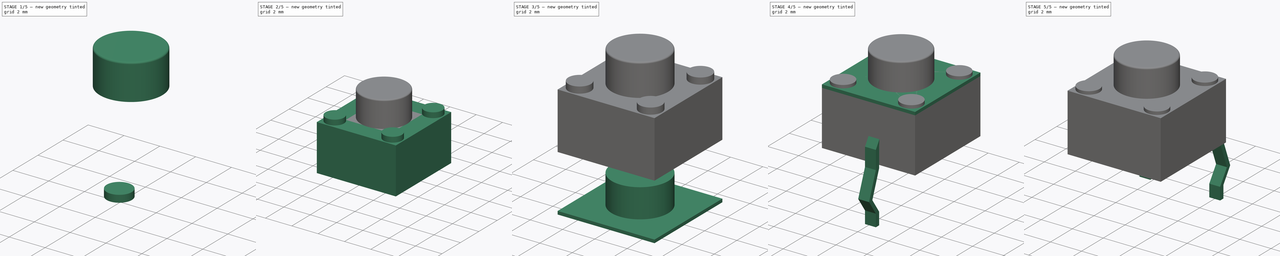
[diagram: build sequence overview — one tinted view per stage of 5, left to right]
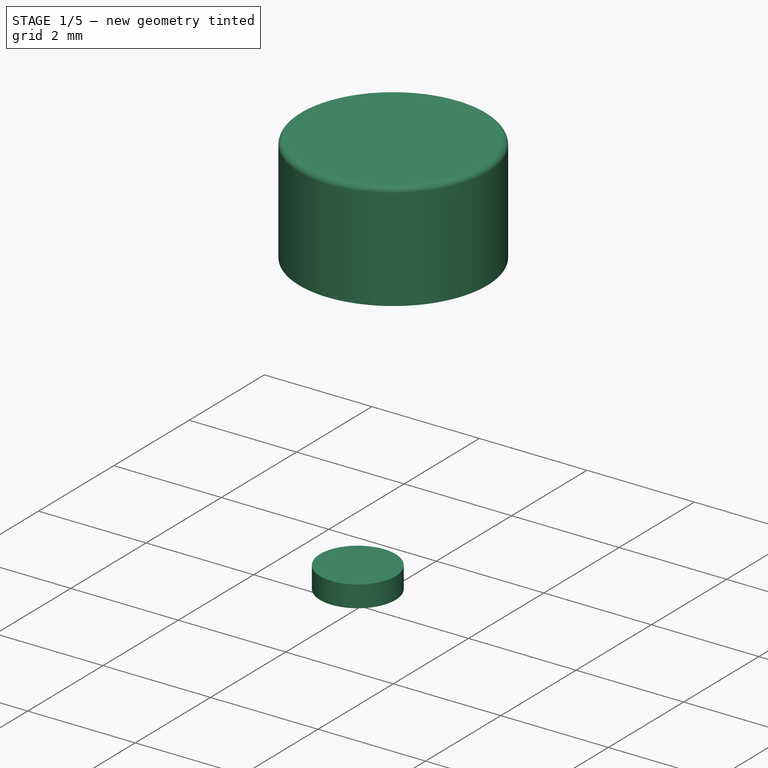
[diagram: stage 1 of 5 — iso view after this stage's code; geometry added in this stage tinted green]
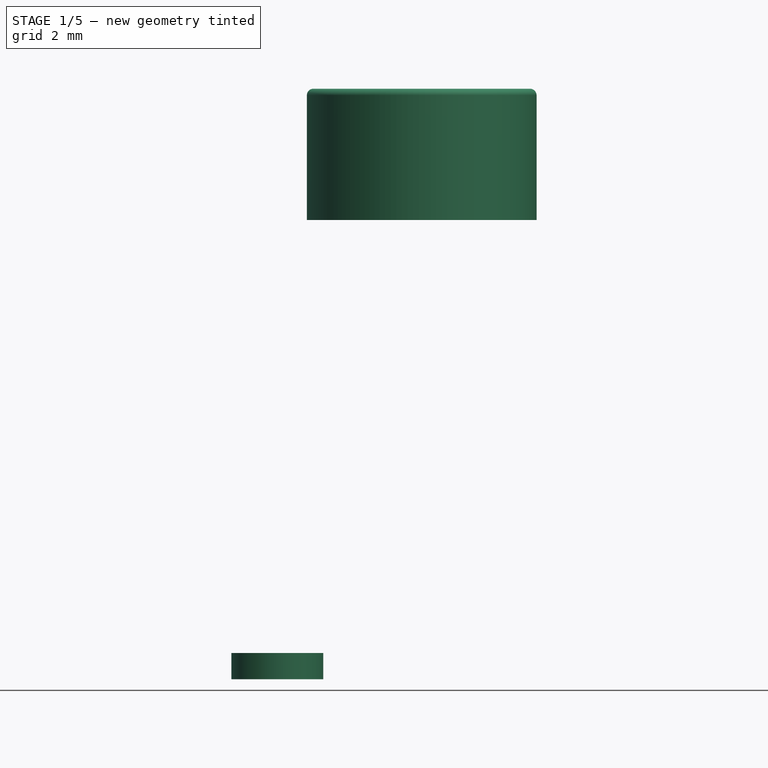
[diagram: stage 1 of 5 — front view after this stage's code; geometry added in this stage tinted green]
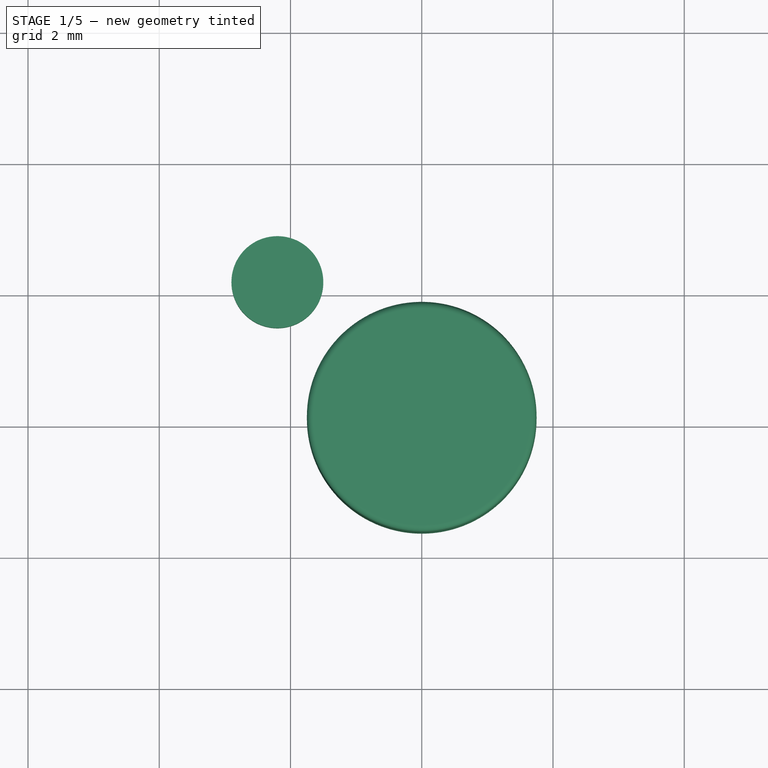
[diagram: stage 1 of 5 — top view after this stage's code; geometry added in this stage tinted green]
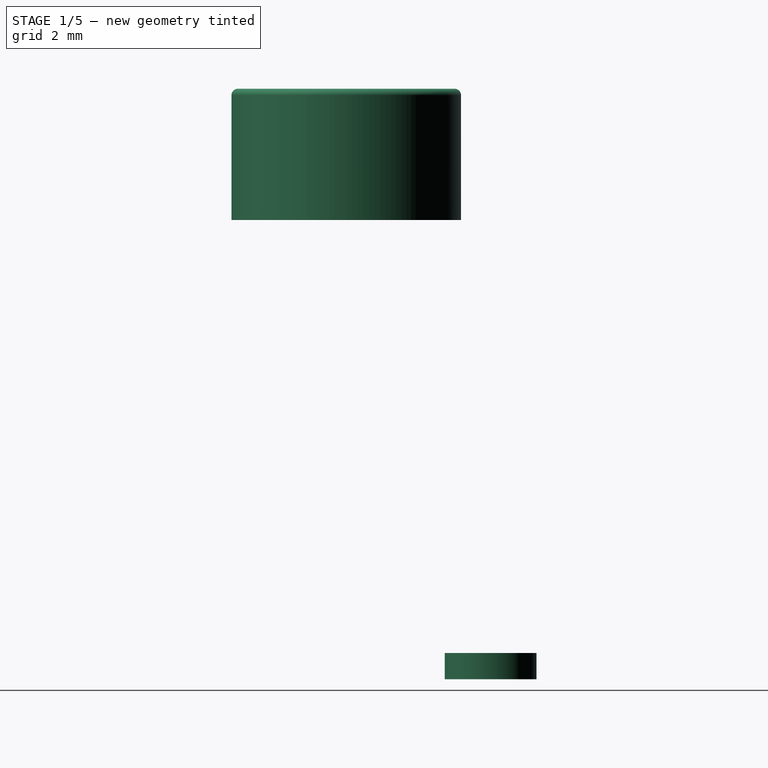
[diagram: stage 1 of 5 — right view after this stage's code; geometry added in this stage tinted green]
FCSTD DOCUMENT  (FreeCAD 0.17R13541 (Git))
Label: Top Push
License: All rights reserved
LicenseURL: http://en.wikipedia.org/wiki/All_rights_reserved
objects: PartDesign::Pad×7, Sketcher::SketchObject×6, PartDesign::Body×6, Part::FeaturePython×2, Part::Fillet×2, Part::MultiFuse×2, Part::Mirroring×1, Part::Cut×1
note: 34 computed .brp shape members not serialized (recipe doc carries the construction recipe); baked Part::Feature solids carry a one-line shape summary decoded from their .brp

FEATURE [Sketcher::SketchObject] Sketch003
  MapMode = 5
  Support = -> [XY_Plane003]
  sketch-geometry (1):
    g0: Circle CenterX=-2.2 CenterY=2.2 CenterZ=0 NormalX=0 NormalY=0 NormalZ=1 AngleXU=0 Radius=0.7
  constraints (3):
    c: Radius(g0) = 0.7
    c: DistanceX(g0,g-1) = 2.2
    c: DistanceY(g-1,g0) = 2.2
FEATURE [PartDesign::Pad] Pad004
  Length = 0.4
  Length2 = 0
  Profile = -> Sketch003
  Type = 4
FEATURE [Sketcher::SketchObject] Sketch005
  MapMode = 5
  Support = -> [XY_Plane005]
  sketch-geometry (1):
    g0: Circle CenterX=0 CenterY=0 CenterZ=0 NormalX=0 NormalY=0 NormalZ=1 AngleXU=0 Radius=1.75
  constraints (2):
    c: Coincident(g0,g-1)
    c: Radius(g0) = 1.75
FEATURE [PartDesign::Pad] Pad006
  Length = 2
  Length2 = 100
  Profile = -> Sketch005
  Type = 0
FEATURE [PartDesign::Body] Body005
  Group = -> [Sketch005,Pad006]
  Origin = -> Origin005
  Placement = pos=(0,0,7) rot=(0,0,1;0rad)
  Tip = -> Pad006
FEATURE [Part::Fillet] Fillet001
  Base = -> Pad006
  Edges = 1 edges r=0.1: [Edge3]
  Placement = pos=(0,0,7) rot=(0,0,1;0rad)
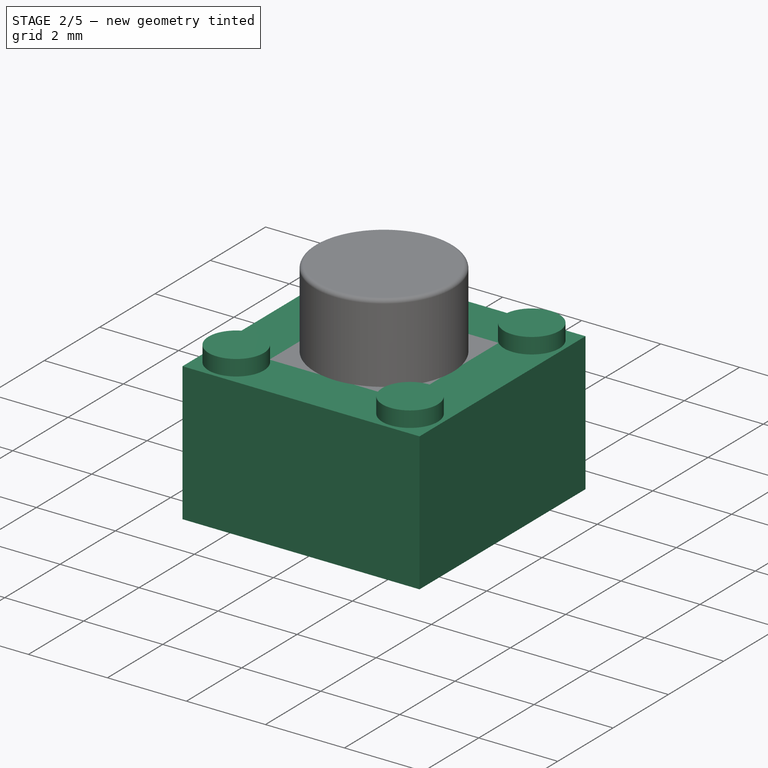
[diagram: stage 2 of 5 — iso view after this stage's code; geometry added in this stage tinted green]
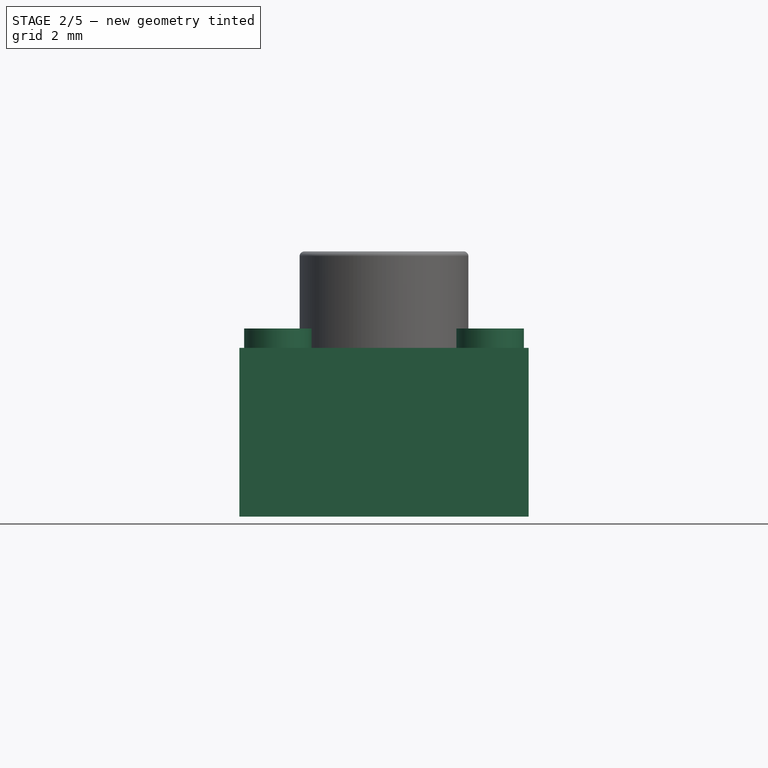
[diagram: stage 2 of 5 — front view after this stage's code; geometry added in this stage tinted green]
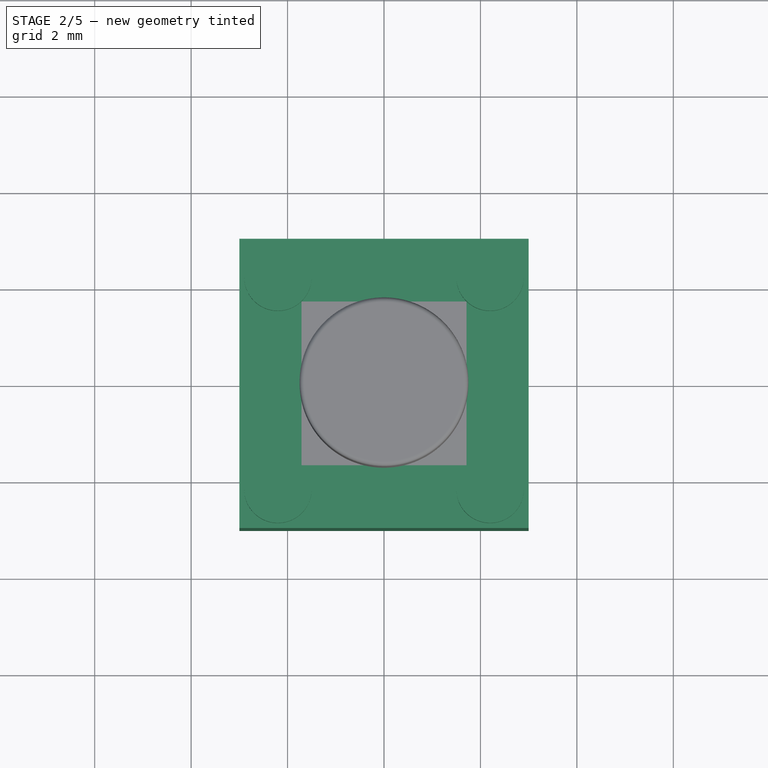
[diagram: stage 2 of 5 — top view after this stage's code; geometry added in this stage tinted green]
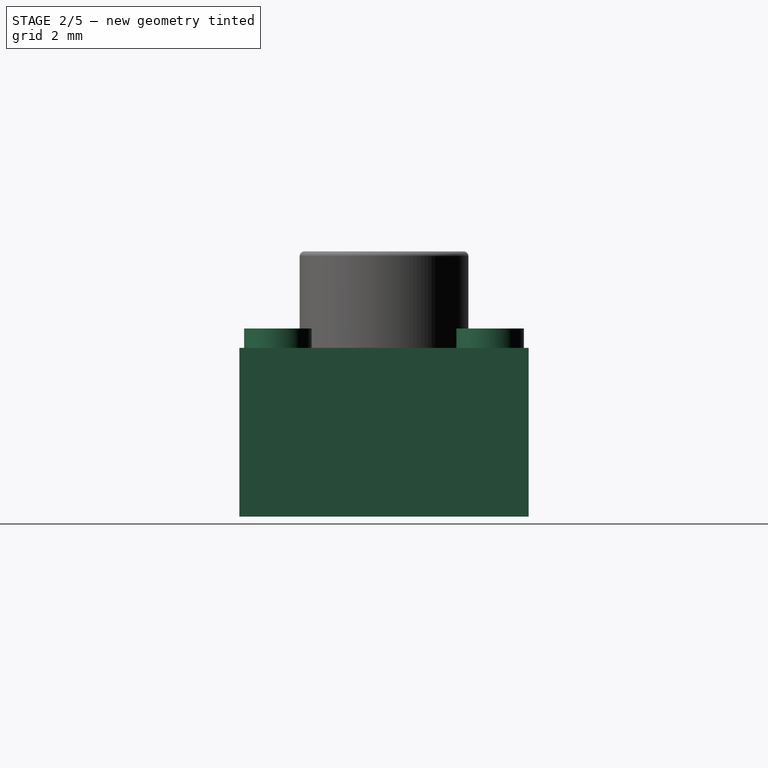
[diagram: stage 2 of 5 — right view after this stage's code; geometry added in this stage tinted green]
FEATURE [Sketcher::SketchObject] Sketch001
  MapMode = 5
  Placement = pos=(0,0,0) rot=(0.57735,0.57735,0.57735;2.0944rad)
  Support = -> [YZ_Plane001]
  sketch-geometry (4):
    g0: LineSegment StartX=-3 StartY=7 StartZ=0 EndX=3 EndY=7 EndZ=0
    g1: LineSegment StartX=3 StartY=7 StartZ=0 EndX=3 EndY=3.5 EndZ=0
    g2: LineSegment StartX=3 StartY=3.5 StartZ=0 EndX=-3 EndY=3.5 EndZ=0
    g3: LineSegment StartX=-3 StartY=3.5 StartZ=0 EndX=-3 EndY=7 EndZ=0
  constraints (12):
    c: Coincident(g0,g1)
    c: Coincident(g1,g2)
    c: Coincident(g2,g3)
    c: Coincident(g3,g0)
    c: Horizontal(g0)
    c: Horizontal(g2)
    c: Vertical(g1)
    c: Vertical(g3)
    c: DistanceY(g-1,g0) = 7
    c: DistanceY(g1,g0) = 3.5
    c: DistanceX(g-1,g1) = 3
    c: DistanceX(g2,g-1) = 3
FEATURE [PartDesign::Pad] Pad002
  Length = 3
  Length2 = 3
  Placement = pos=(0,0,0) rot=(0.57735,0.57735,0.57735;2.0944rad)
  Profile = -> Sketch001
  Type = 4
FEATURE [PartDesign::Body] Body003
  Group = -> [Sketch003,Pad004]
  Origin = -> Origin003
  Placement = pos=(0,0,7) rot=(0,0,1;0rad)
  Tip = -> Pad004
FEATURE [Part::FeaturePython] Array001  # Draft array (typed FeaturePython)
  Angle = 360
  ArrayType = 0
  Axis = (0,0,1)
  Base = -> Body003
  Center = (0,0,0)
  Fuse = false
  IntervalAxis = (0,0,0)
  IntervalX = (4.4,0,0)
  IntervalY = (0,-4.4,0)
  IntervalZ = (0,0,0)
  NumberPolar = 1
  NumberX = 2
  NumberY = 2
  NumberZ = 1
FEATURE [Part::MultiFuse] Fusion
  Shapes = -> [Body001,Array001]
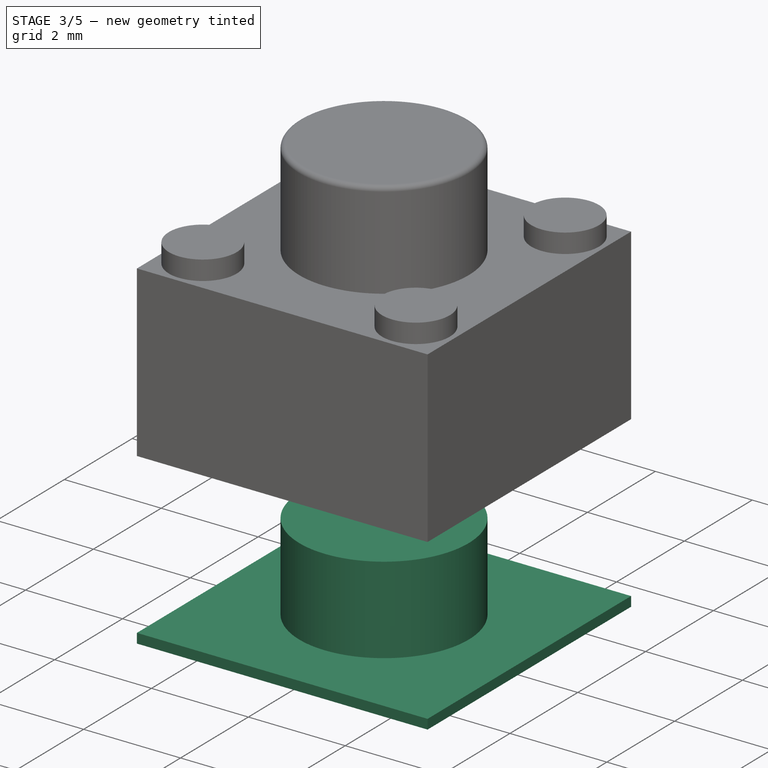
[diagram: stage 3 of 5 — iso view after this stage's code; geometry added in this stage tinted green]
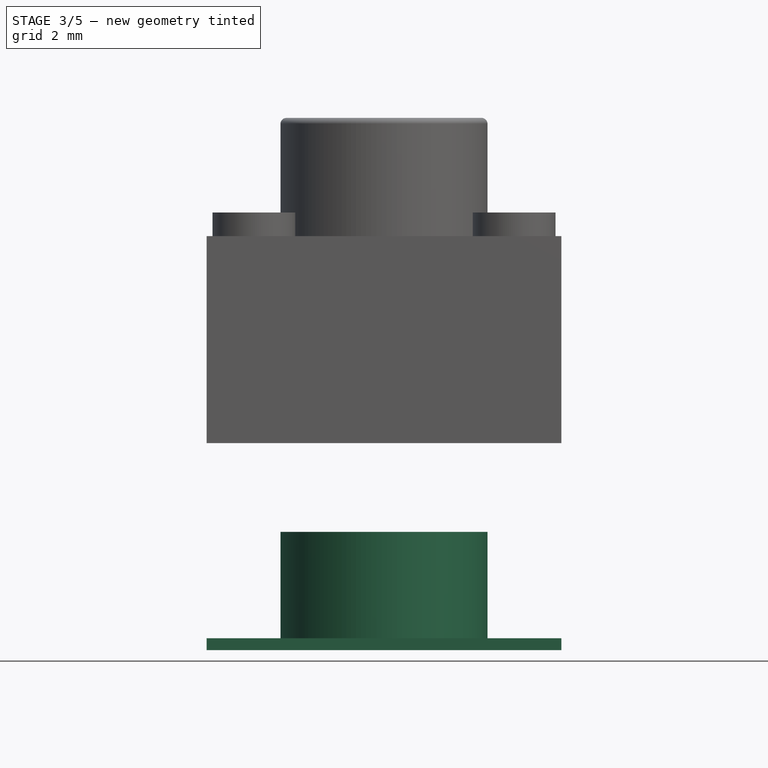
[diagram: stage 3 of 5 — front view after this stage's code; geometry added in this stage tinted green]
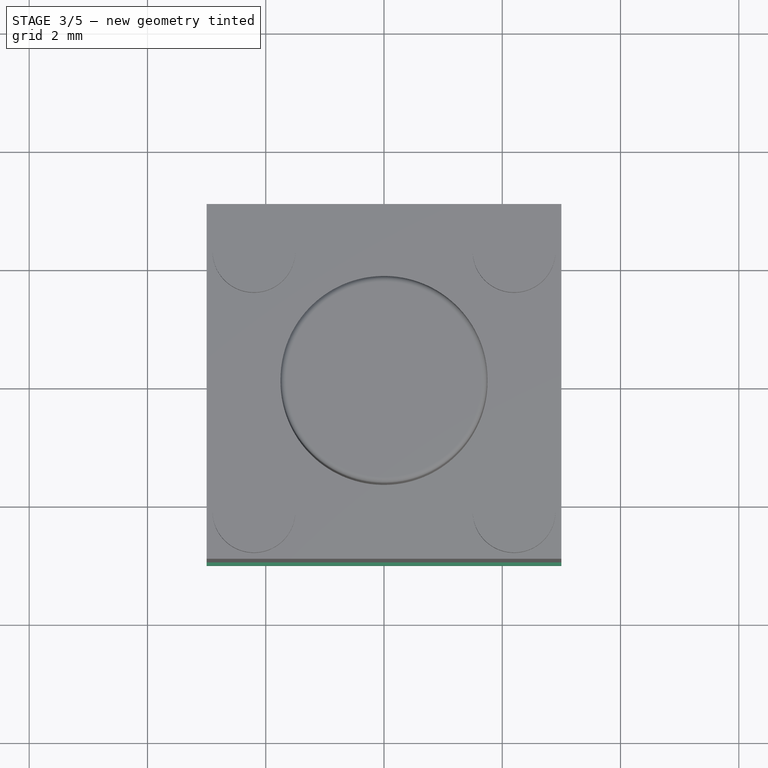
[diagram: stage 3 of 5 — top view after this stage's code; geometry added in this stage tinted green]
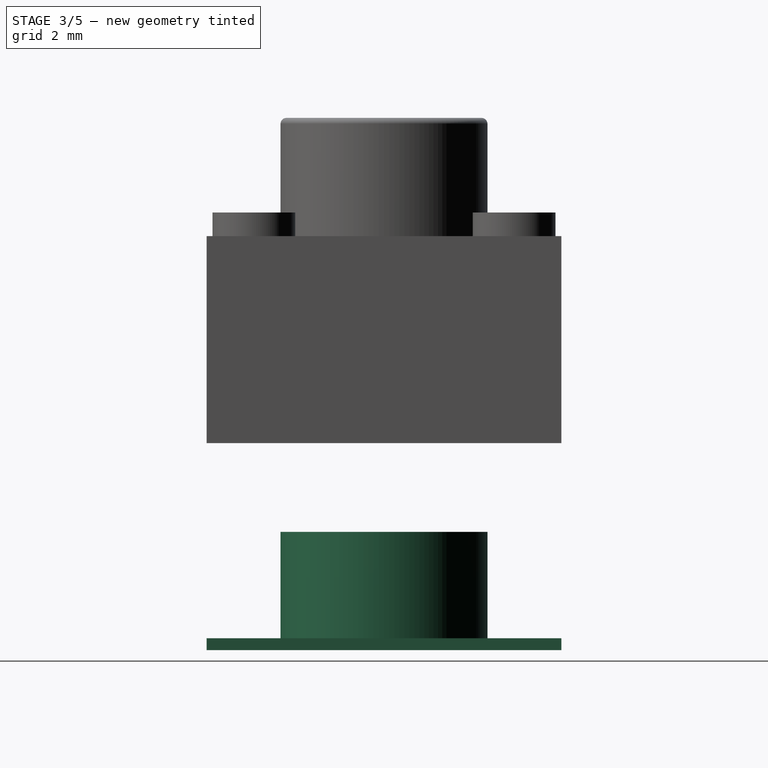
[diagram: stage 3 of 5 — right view after this stage's code; geometry added in this stage tinted green]
FEATURE [PartDesign::Body] Body001
  Group = -> [Sketch001,Pad002]
  Origin = -> Origin001
  Tip = -> Pad002
FEATURE [Sketcher::SketchObject] Sketch002
  MapMode = 5
  Support = -> [XY_Plane002]
  sketch-geometry (4):
    g0: LineSegment StartX=-3 StartY=3 StartZ=0 EndX=3 EndY=3 EndZ=0
    g1: LineSegment StartX=3 StartY=3 StartZ=0 EndX=3 EndY=-3 EndZ=0
    g2: LineSegment StartX=3 StartY=-3 StartZ=0 EndX=-3 EndY=-3 EndZ=0
    g3: LineSegment StartX=-3 StartY=-3 StartZ=0 EndX=-3 EndY=3 EndZ=0
  constraints (12):
    c: Coincident(g0,g1)
    c: Coincident(g1,g2)
    c: Coincident(g2,g3)
    c: Coincident(g3,g0)
    c: Horizontal(g0)
    c: Horizontal(g2)
    c: Vertical(g1)
    c: Vertical(g3)
    c: DistanceX(g0,g0) = 6
    c: DistanceY(g1,g0) = 6
    c: DistanceX(g-1,g1) = 3
    c: DistanceY(g-1,g0) = 3
FEATURE [PartDesign::Pad] Pad003
  Length = 0.2
  Length2 = 0
  Offset = 2
  Profile = -> Sketch002
  Type = 0
FEATURE [Sketcher::SketchObject] Sketch004
  MapMode = 5
  Support = -> [XY_Plane004]
  sketch-geometry (1):
    g0: Circle CenterX=0 CenterY=0 CenterZ=0 NormalX=0 NormalY=0 NormalZ=1 AngleXU=0 Radius=1.75
  constraints (2):
    c: Coincident(g0,g-1)
    c: Radius(g0) = 1.75
FEATURE [PartDesign::Pad] Pad005
  Length = 2
  Length2 = 0
  Profile = -> Sketch004
  Type = 4
FEATURE [Part::MultiFuse] Fusion001
  Shapes = -> [Fillet001,Fusion]
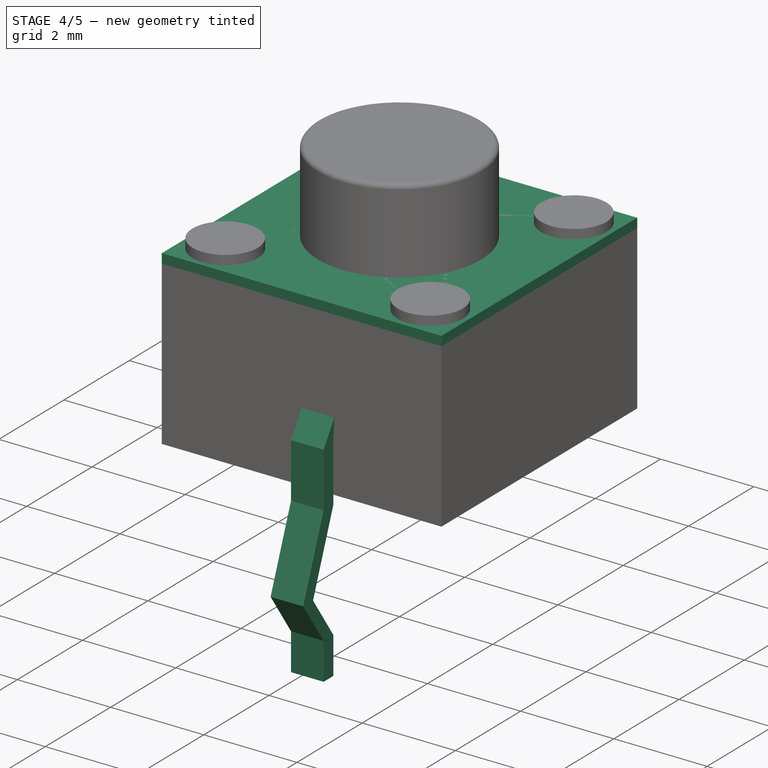
[diagram: stage 4 of 5 — iso view after this stage's code; geometry added in this stage tinted green]
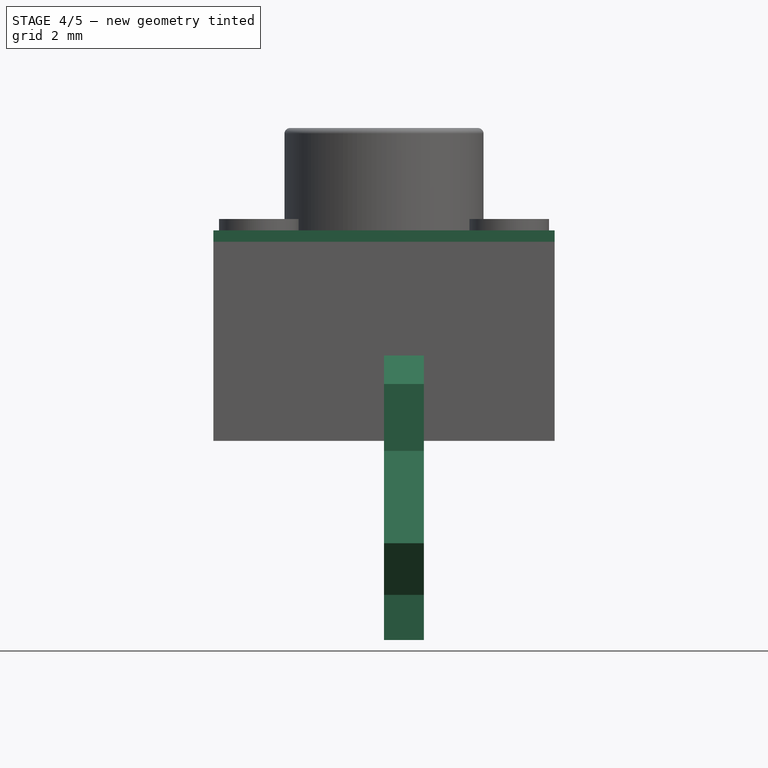
[diagram: stage 4 of 5 — front view after this stage's code; geometry added in this stage tinted green]
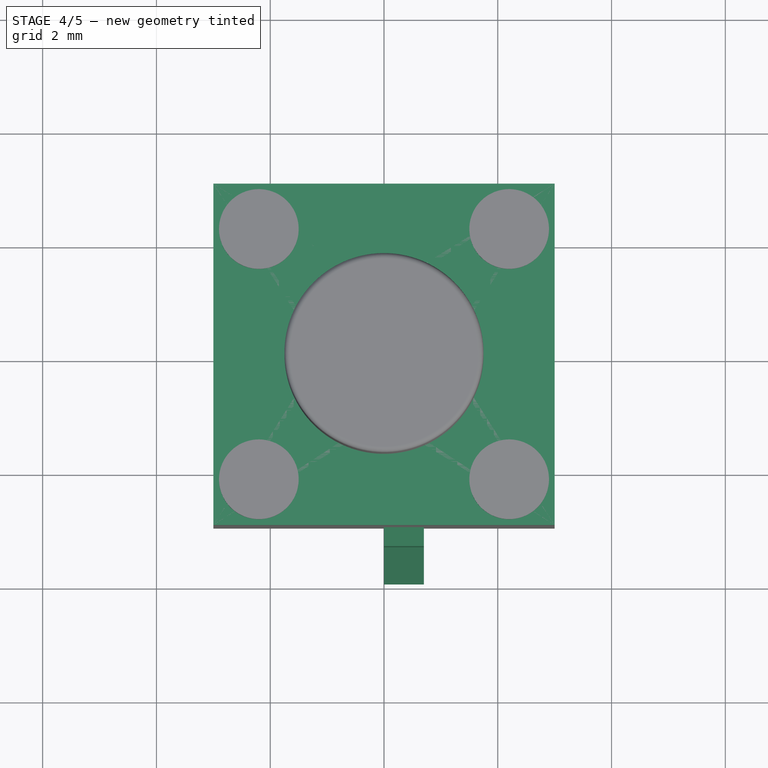
[diagram: stage 4 of 5 — top view after this stage's code; geometry added in this stage tinted green]
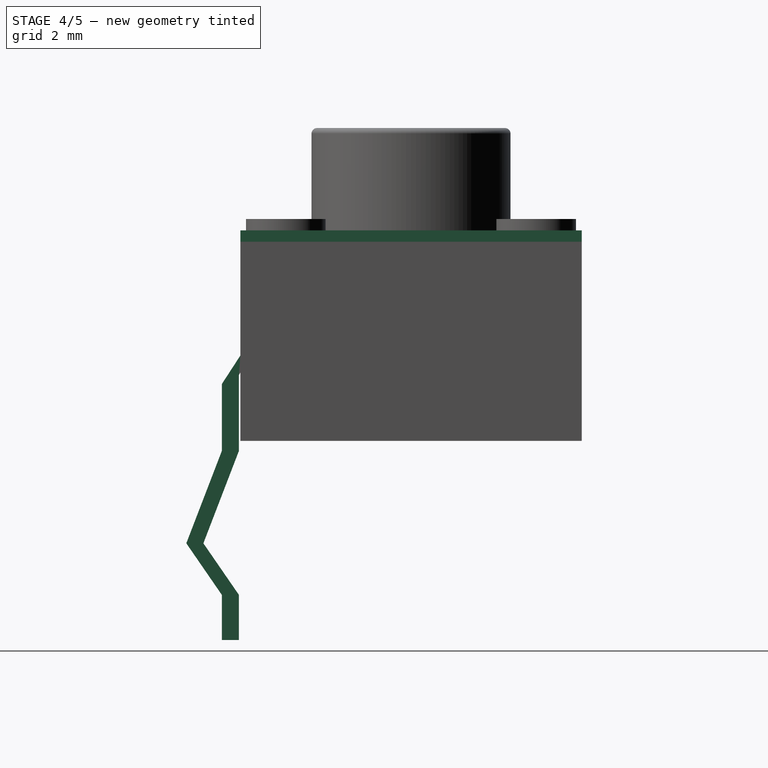
[diagram: stage 4 of 5 — right view after this stage's code; geometry added in this stage tinted green]
FEATURE [Sketcher::SketchObject] Sketch
  MapMode = 5
  Placement = pos=(0,0,0) rot=(0.57735,0.57735,0.57735;2.0944rad)
  Support = -> [YZ_Plane]
  sketch-geometry (12):
    g0: LineSegment StartX=-3.325 StartY=0 StartZ=0 EndX=-3.325 EndY=0.79267 EndZ=0
    g1: LineSegment StartX=-3.325 StartY=0.79267 StartZ=0 EndX=-3.95 EndY=1.7 EndZ=0
    g2: LineSegment StartX=-3.325 StartY=3.325 StartZ=0 EndX=-3.325 EndY=4.50004 EndZ=0
    g3: LineSegment StartX=-3 StartY=5 StartZ=0 EndX=-2.99959 EndY=4.7 EndZ=0
    g4: LineSegment StartX=-3.025 StartY=4.66092 StartZ=0 EndX=-3.025 EndY=3.325 EndZ=0
    g5: LineSegment StartX=-3.65 StartY=1.7 StartZ=0 EndX=-3.025 EndY=0.79267 EndZ=0
    g6: LineSegment StartX=-3.025 StartY=0.79267 StartZ=0 EndX=-3.025 EndY=0 EndZ=0
    g7: LineSegment StartX=-3.025 StartY=0 StartZ=0 EndX=-3.325 EndY=0 EndZ=0
    g8: LineSegment StartX=-3.325 StartY=3.325 StartZ=0 EndX=-3.95 EndY=1.7 EndZ=0
    g9: LineSegment StartX=-3.025 StartY=3.325 StartZ=0 EndX=-3.65 EndY=1.7 EndZ=0
    g10: LineSegment StartX=-2.99959 StartY=4.7 StartZ=0 EndX=-3.025 EndY=4.66092 EndZ=0
    g11: LineSegment StartX=-3 StartY=5 StartZ=0 EndX=-3.325 EndY=4.50004 EndZ=0
  constraints (27):
    c: PointOnObject(g0,g-1)
    c: Vertical(g0)
    c: Coincident(g0,g1)
    c: Vertical(g2)
    c: Vertical(g4)
    c: Coincident(g5,g6)
    c: PointOnObject(g6,g-1)
    c: Vertical(g6)
    c: Coincident(g6,g7)
    c: Coincident(g7,g0)
    c: DistanceX(g0,g6) = 0.3
    c: DistanceY(g0,g1) = 1.7
    c: DistanceY(g0,g3) = 5
    c: DistanceX(g2,g4) = 0.3
    c: DistanceX(g1) = -3.95
    c: DistanceX(g0,g-1) = 3.325
    c: Coincident(g8,g2)
    c: Coincident(g8,g1)
    c: Coincident(g9,g4)
    c: Coincident(g9,g5)
    c: DistanceY(g3,g3) = 0.3
    c: DistanceX(g2,g-1) = 3.325
    c: DistanceX(g3,g-1) = 3
    c: Coincident(g10,g3)
    c: Coincident(g10,g4)
    c: Coincident(g11,g3)
    c: Coincident(g11,g2)
FEATURE [PartDesign::Pad] Pad
  Length = 0.7
  Length2 = 100
  Placement = pos=(0,0,0) rot=(0.57735,0.57735,0.57735;2.0944rad)
  Profile = -> Sketch
  Type = 0
FEATURE [PartDesign::Body] Body002
  Group = -> [Sketch002,Pad003]
  Origin = -> Origin002
  Placement = pos=(0,0,7) rot=(0,0,1;0rad)
  Tip = -> Pad003
FEATURE [Part::Fillet] Fillet
  Base = -> Pad003
  Edges = 4 edges r=0.05: [Edge4,Edge7,Edge10,Edge12]
  Placement = pos=(0,0,7) rot=(0,0,1;0rad)
FEATURE [PartDesign::Body] Body004
  Group = -> [Sketch004,Pad005]
  Origin = -> Origin004
  Placement = pos=(0,0,7) rot=(0,0,1;0rad)
  Tip = -> Pad005
FEATURE [Part::Cut] Cut
  Base = -> Body002
  Tool = -> Body004
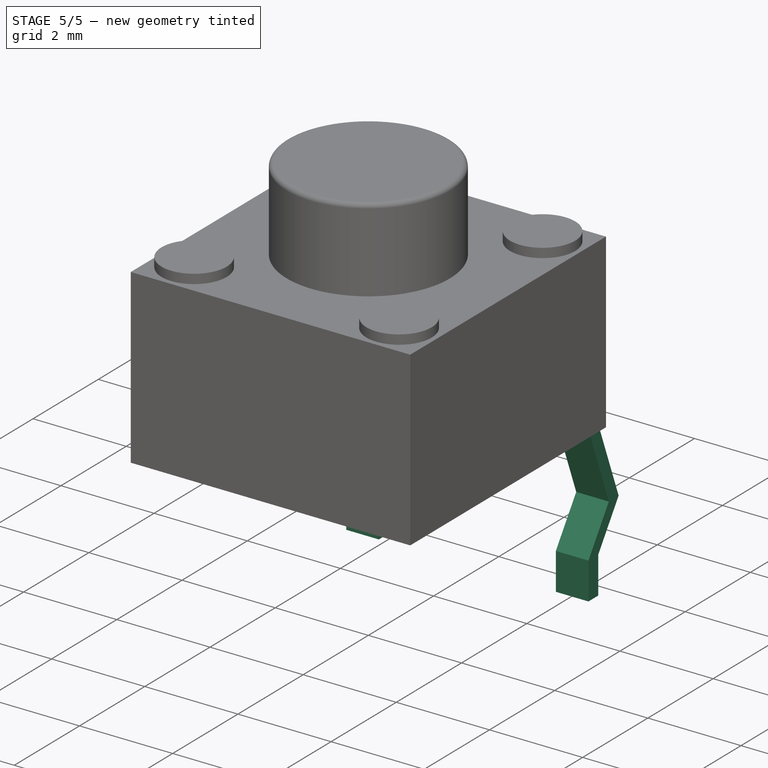
[diagram: stage 5 of 5 — iso view after this stage's code; geometry added in this stage tinted green]
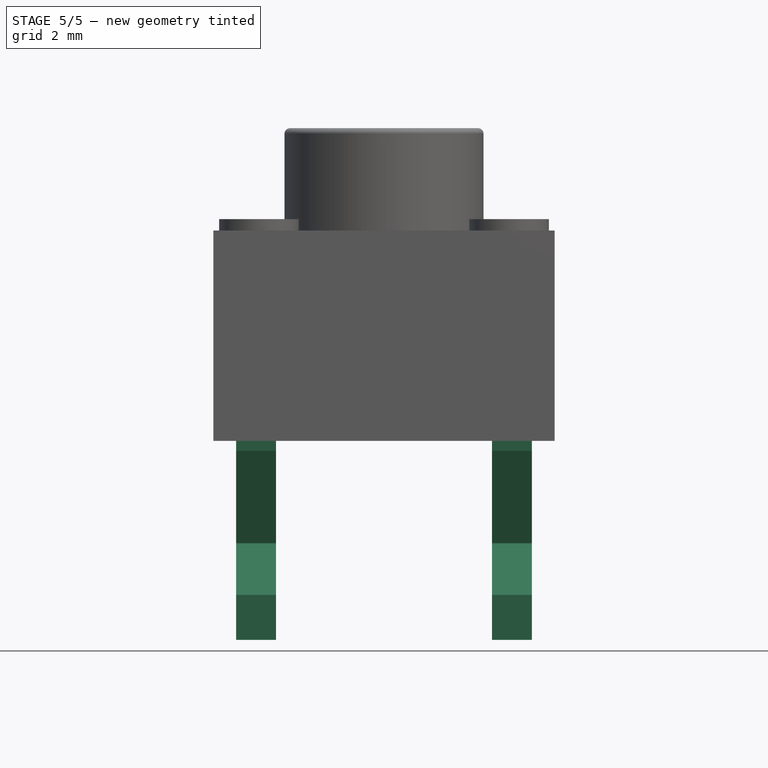
[diagram: stage 5 of 5 — front view after this stage's code; geometry added in this stage tinted green]
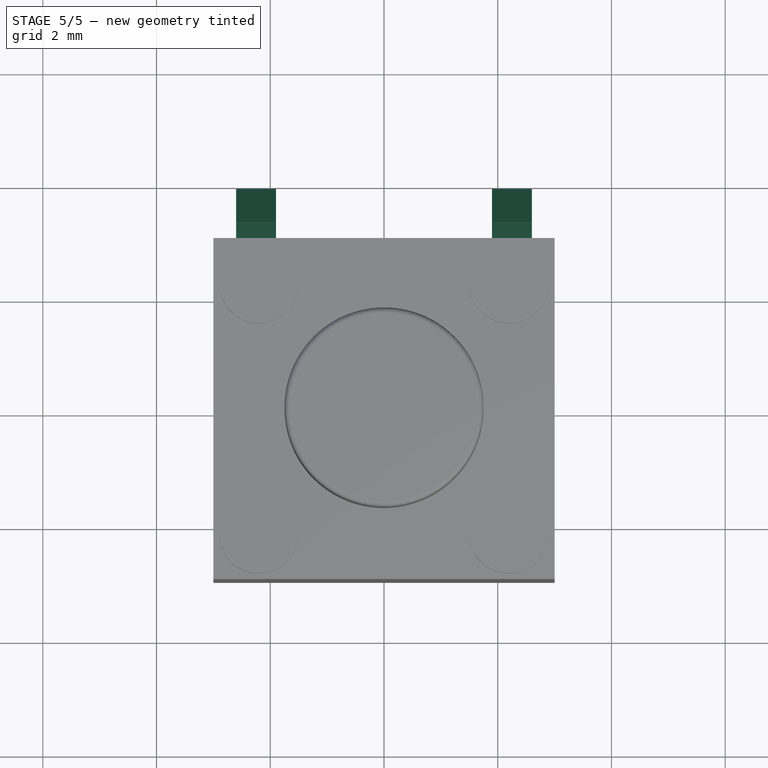
[diagram: stage 5 of 5 — top view after this stage's code; geometry added in this stage tinted green]
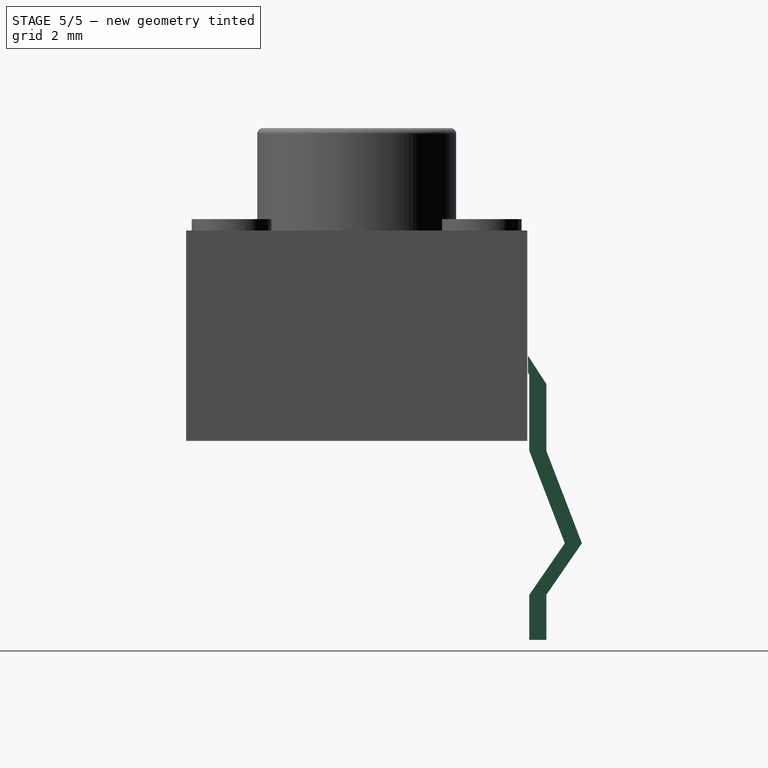
[diagram: stage 5 of 5 — right view after this stage's code; geometry added in this stage tinted green]
FEATURE [PartDesign::Pad] Pad001
  BaseFeature = -> Pad
  Length = 0.7
  Length2 = 100
  Placement = pos=(0,0,0) rot=(0.57735,0.57735,0.57735;2.0944rad)
  Profile = -> Sketch
  Type = 0
FEATURE [PartDesign::Body] Body
  Group = -> [Sketch,Pad,Pad001]
  Origin = -> Origin
  Tip = -> Pad001
FEATURE [Part::FeaturePython] Array  # Draft array (typed FeaturePython)
  Angle = 360
  ArrayType = 0
  Axis = (0,0,1)
  Base = -> Body
  Center = (0,0,0)
  Fuse = false
  IntervalAxis = (0,0,0)
  IntervalX = (4.5,0,0)
  IntervalY = (0,1,0)
  IntervalZ = (0,0,0)
  NumberPolar = 1
  NumberX = 2
  NumberY = 1
  NumberZ = 1
  Placement = pos=(-2.6,0,0) rot=(0,0,1;0rad)
FEATURE [Part::Mirroring] Part__Mirroring  label="Array (Mirror #1)"
  Base = (0,0,0)
  Normal = (0,1,0)
  Placement = pos=(0,0.01,0) rot=(0,0,1;0rad)
  Source = -> Array
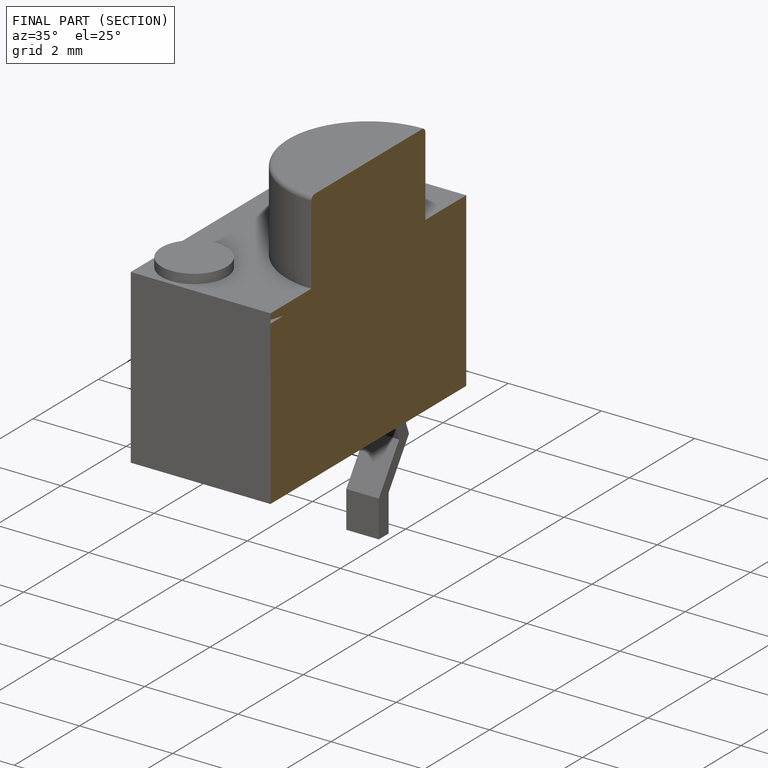
[diagram: finished part — half-section view (interior)]
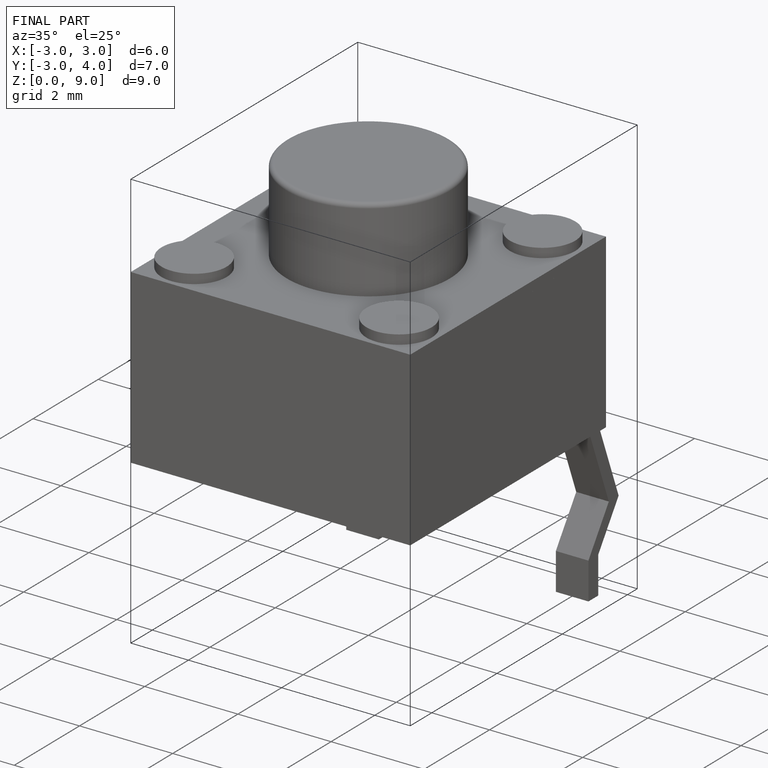
[diagram: finished part — iso view with bounding-box wireframe]
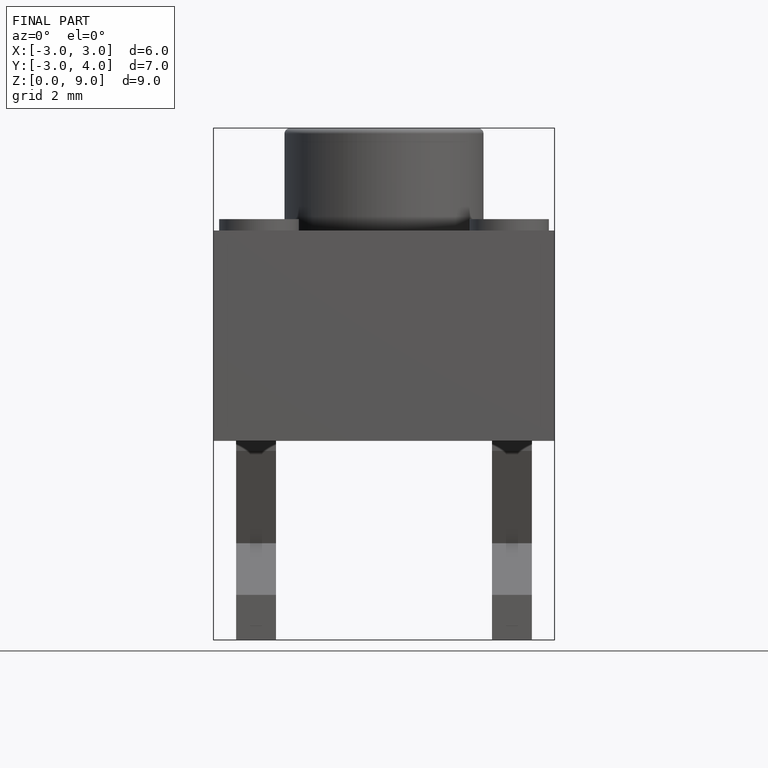
[diagram: finished part — front view with bounding-box wireframe]
